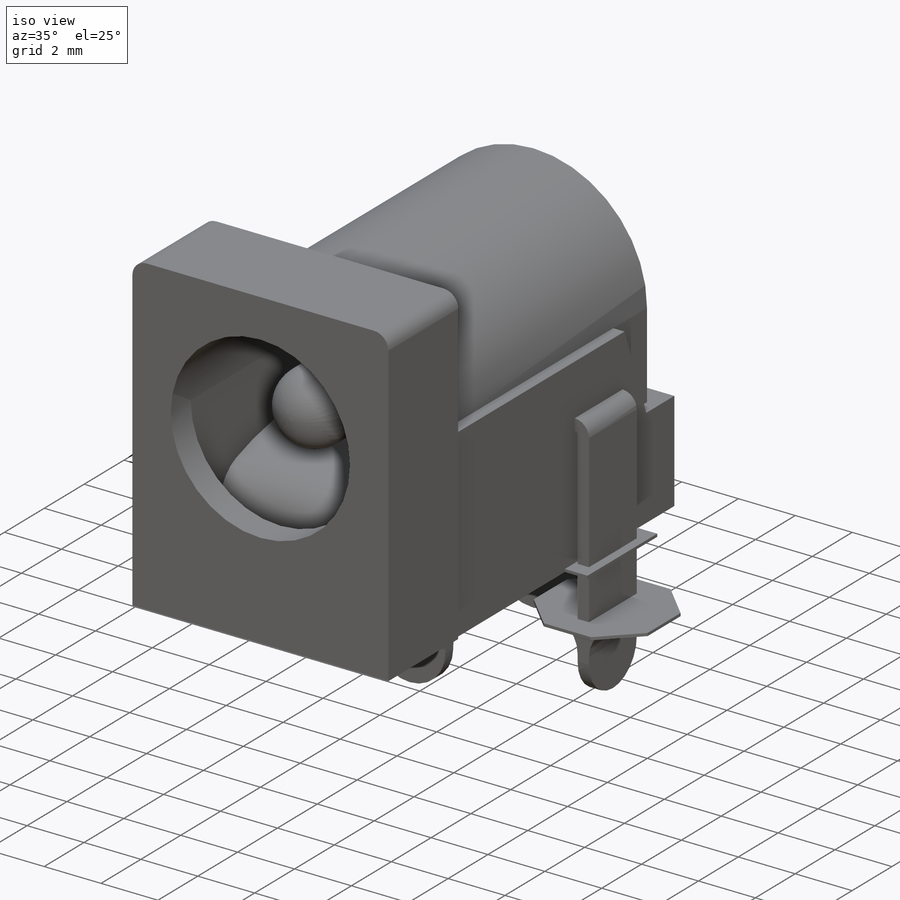
[diagram: iso view]
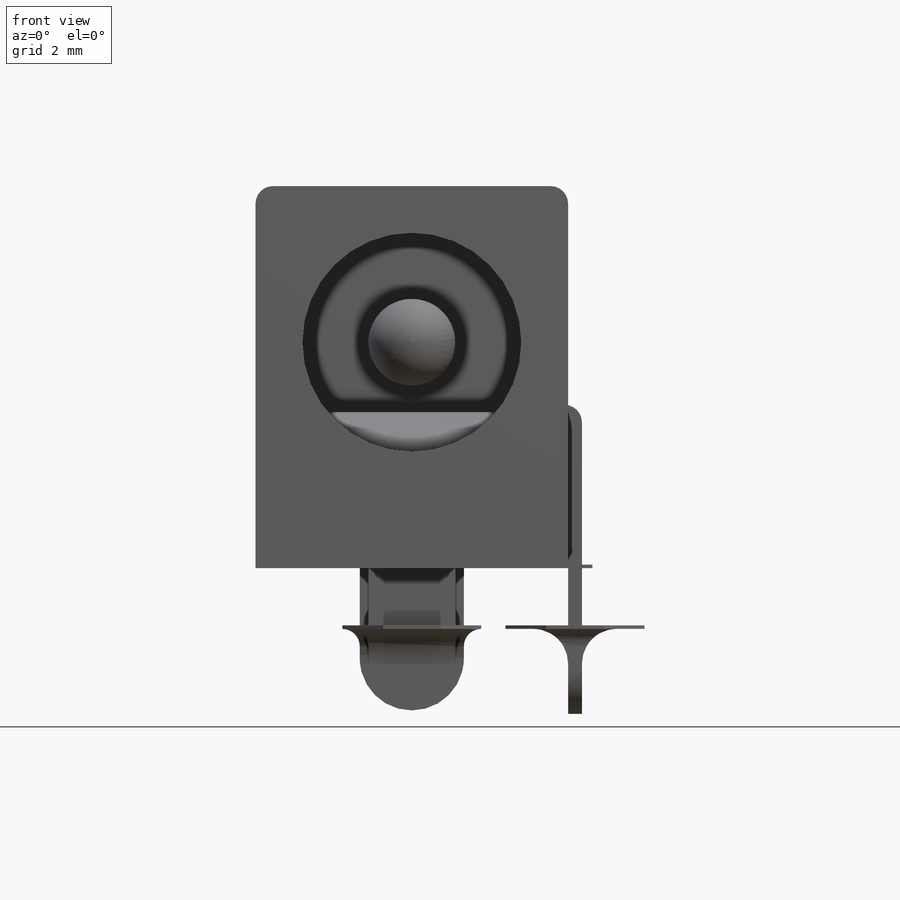
[diagram: front view]
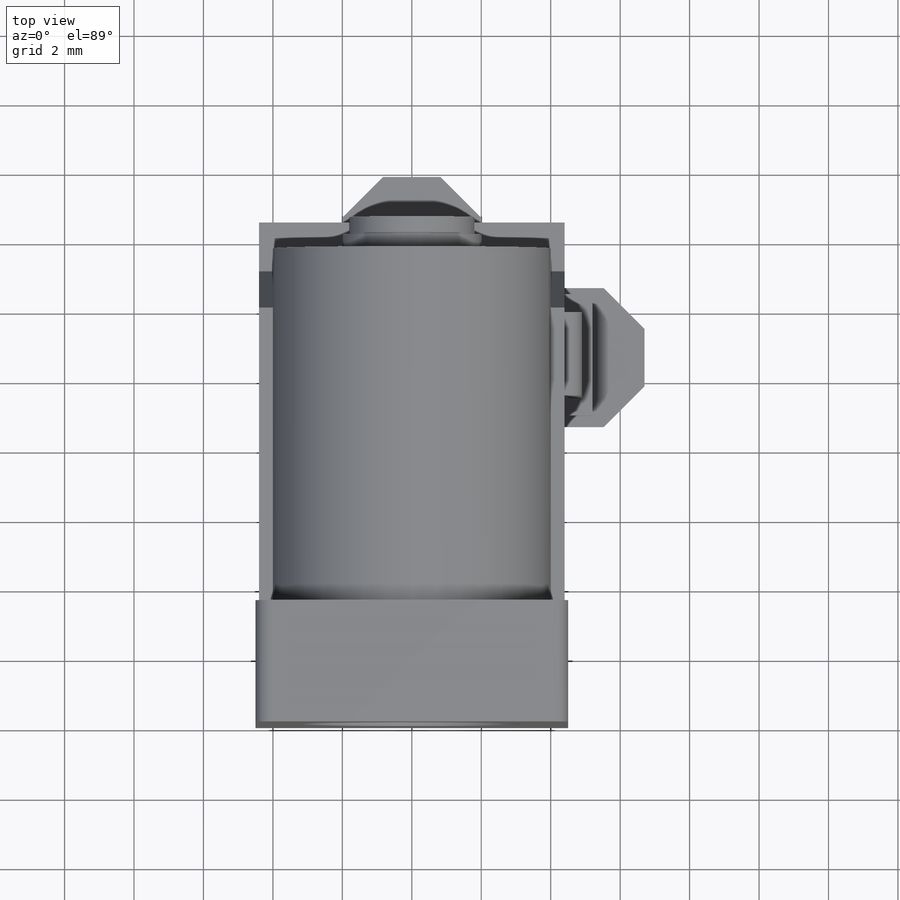
[diagram: top view]
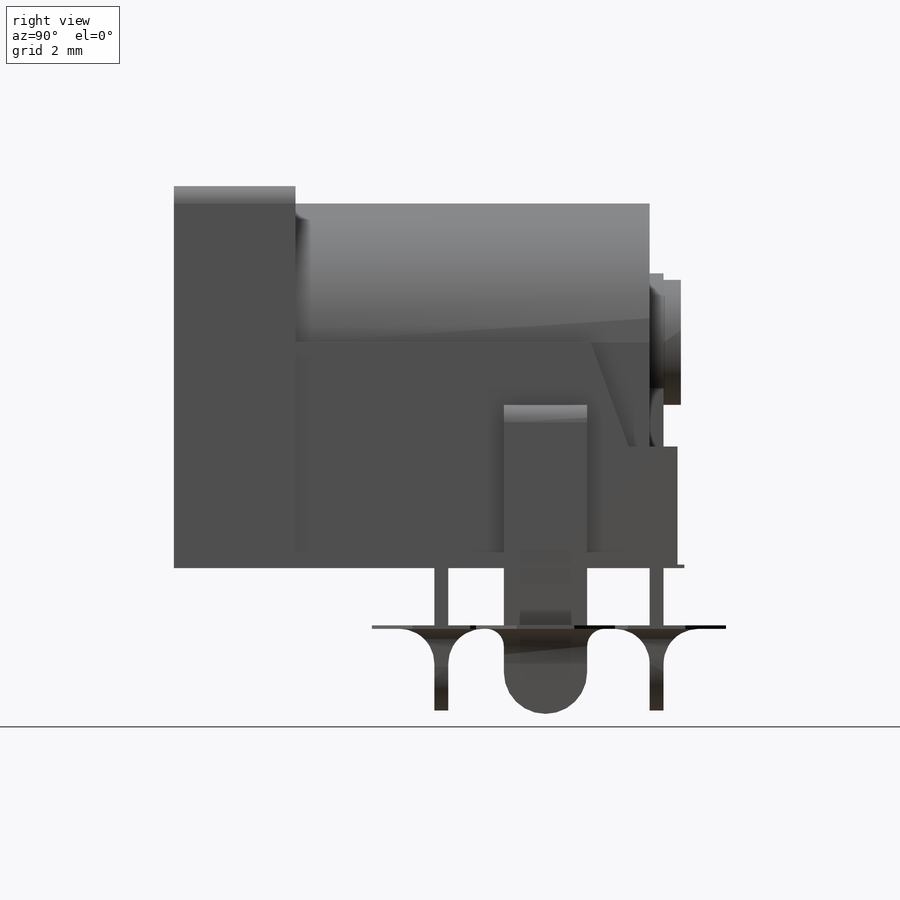
[diagram: right view]
SOLIDWORKS PART (.sldprt)
format: sldprt  version: not decoded by parser v0  size: 673,280 bytes
history: native  units: mm
features: sketch x14, extrude x6, cut_extrude x5, plane x4, fillet x3, material x1, revolve x1 (+13 scaffold rows collapsed)
feature tree (47):
  scaffold x13  (default folders/planes/origin — collapsed)
  material  "PA Type 6"
  sketch  "Sketch1"  dims[D3=0.5mm D1=11.0mm D2=9.0mm]
  extrude  "Boss-Extrude1"  Depth=3.5mm
  sketch  "Sketch3"  dims[c1.D1=14.5mm c1.D2=6.5mm c1.D3=3.5mm c1.D4=12.0mm c1.D5=~3.095326mm c2.D5=70.0deg]
  extrude  "Boss-Extrude2"  Depth=8.8mm
  plane  "Plane1"  Offset=13.7mm
  sketch  "Sketch4"  dims[D1=8.0mm D2=6.5mm]
  extrude  "Boss-Extrude3"  Depth=12mm
  sketch  "Sketch5"  dims[D1=6.3mm]
  cut_extrude  "Cut-Extrude1"  Depth=10mm
  sketch  "Sketch6"  dims[D1=3.2mm D2=1.6mm]
  cut_extrude  "Cut-Extrude3"  Depth=10mm
  sketch  "Sketch7"  dims[D1=4.0mm D5=2.5mm D2=1.5mm D3=3.0mm D4=2.6mm]
  extrude  "Boss-Extrude4"  Depth=0.4mm
  sketch  "Sketch17"
  cut_extrude  "Cut-Extrude6"  [1 undecoded]
  plane  "Plane2"  Offset=1mm
  sketch  "Sketch8"  dims[D1=1.5mm]
  cut_extrude  "Cut-Extrude4"  Depth=9mm
  plane  "Plane3"  Offset=10.7mm
  sketch  "Sketch9"  dims[c1.D1=0.1mm c1.D5=5.5mm c2.D1=9.9mm c2.D2=4.2mm c2.D3=4.3mm c2.D4=8.0mm c3.D1=2.4mm c3.D5=0.4mm c3.D6=1.0mm c3.D7=5.0mm]
  fillet  "Fillet1"  Radius=1.2mm
  sketch  "Sketch11"  dims[c1.D1=0.1mm c1.D4=~1.364546mm c1.D8=1.25mm c1.D2=~5.463577mm c2.D2=~0.53151deg c3.D2=7.5mm c3.D3=4.5mm c3.D4=3.0mm c3.D5=4.2mm c3.D6=1.5mm c3.D7=4.1mm c4.D3=4.5mm c4.D4=2.5mm c4.D1=6.0mm c4.D5=0.4mm c4.D6=1.0mm c4.D7=5.0mm]
  sketch  "Sketch12"  dims[D3=1.25mm D1=6.6mm D2=3.3mm D4=2.85mm D5=5.0mm]
  cut_extrude  "Cut-Extrude5"  Depth=2mm
  sketch  "Sketch16"  dims[c1.D1=2.5mm c1.D3=1.0mm c1.D2=1.8mm c1.D4=0.5mm c1.D5=1.5mm c2.D2=3.6mm c2.D6=12.1mm c3.D2=6.5mm c3.D6=3.6mm]
  revolve  "Revolve1"  Angle=360deg
  plane  "Plane4"  Offset=1.65mm
  sketch  "Sketch19"  dims[D1=3.5mm D2=9.0mm D3=0.8mm D4=1.0mm D5=3.2mm D6=1.6mm D7=4.0mm]
  extrude  "Boss-Extrude5"  Depth=0.1mm
  sketch  "Sketch20"  dims[D1=4.0mm D2=0.2mm D3=0.2mm]
  extrude  "Boss-Extrude6"  Depth=0.1mm
  fillet  "Fillet4"  Radius=1mm
  fillet  "Fillet5"  Radius=0.5mm
decode coverage: 27 of 29 modeling features carry decoded parameters
note: ~ marks probable driven/reference dimensions
note: 1 parameter value undecoded
note: suppression state not decoded; provenance and decode notes live in map.json
